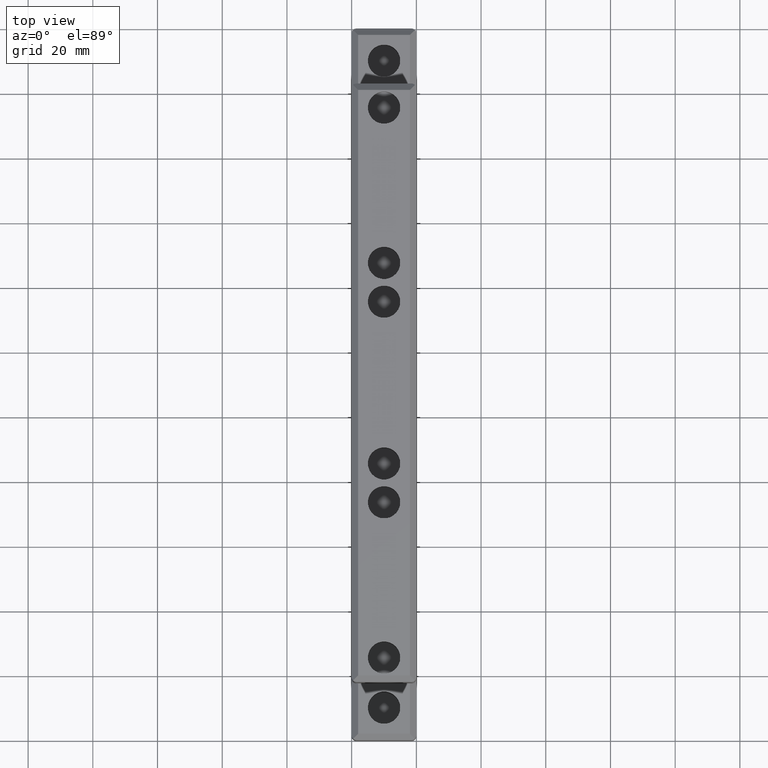
[diagram: clean part render]
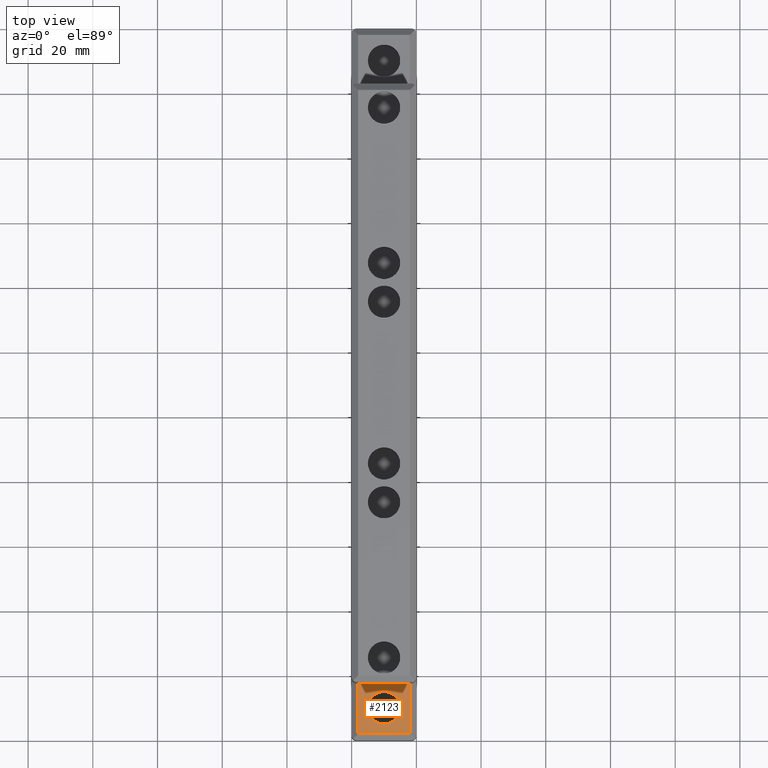
[diagram: same view with one face highlighted and labeled with its STEP entity id]
A machine part, top view. The second image highlights one B-rep face of the part: STEP entity #2123.
In plain terms, the highlighted planar face has unit normal (0, 0, 1).
Its self-contained STEP definition (entity closure, byte-faithful):
#43 = DIRECTION ( 'NONE',  ( 0.0000000000000000000, 1.000000000000000000, 0.0000000000000000000 ) ) ;
#85 = DIRECTION ( 'NONE',  ( 0.0000000000000000000, 0.0000000000000000000, 1.000000000000000000 ) ) ;
#90 = LINE ( 'NONE', #562, #2725 ) ;
#94 = EDGE_LOOP ( 'NONE', ( #836, #155 ) ) ;
#155 = ORIENTED_EDGE ( 'NONE', *, *, #1377, .F. ) ;
#166 = VECTOR ( 'NONE', #2056, 1000.000000000000000 ) ;
#290 = VERTEX_POINT ( 'NONE', #2295 ) ;
#320 = CARTESIAN_POINT ( 'NONE',  ( 17.50000000000000000, 19.50000000000000000, -20.00000000000000000 ) ) ;
#325 = VECTOR ( 'NONE', #603, 1000.000000000000000 ) ;
#335 = AXIS2_PLACEMENT_3D ( 'NONE', #1535, #43, #1279 ) ;
#562 = CARTESIAN_POINT ( 'NONE',  ( 17.50000000000000000, 19.50000000000000000, -2.000000000000000000 ) ) ;
#603 = DIRECTION ( 'NONE',  ( -1.000000000000000000, 0.0000000000000000000, 0.0000000000000000000 ) ) ;
#778 = ORIENTED_EDGE ( 'NONE', *, *, #2919, .T. ) ;
#785 = DIRECTION ( 'NONE',  ( 0.0000000000000000000, 1.000000000000000000, 0.0000000000000000000 ) ) ;
#801 = EDGE_CURVE ( 'NONE', #3041, #2331, #2613, .T. ) ;
#836 = ORIENTED_EDGE ( 'NONE', *, *, #1202, .F. ) ;
#879 = CARTESIAN_POINT ( 'NONE',  ( 2.000000000000000000, 19.50000000000000000, -20.00000000000000000 ) ) ;
#907 = CARTESIAN_POINT ( 'NONE',  ( 2.000000000000000000, 19.50000000000000000, -18.00000000000000000 ) ) ;
#931 = CARTESIAN_POINT ( 'NONE',  ( 17.50000000000000000, 19.50000000000000000, -2.000000000000000000 ) ) ;
#943 = EDGE_LOOP ( 'NONE', ( #1531, #3162, #997, #778 ) ) ;
#986 = LINE ( 'NONE', #320, #166 ) ;
#997 = ORIENTED_EDGE ( 'NONE', *, *, #1544, .F. ) ;
#1082 = AXIS2_PLACEMENT_3D ( 'NONE', #2132, #2102, #1408 ) ;
#1202 = EDGE_CURVE ( 'NONE', #1816, #2898, #1373, .T. ) ;
#1251 = CARTESIAN_POINT ( 'NONE',  ( 10.00000000000000000, 19.50000000000000000, -10.00000000000000000 ) ) ;
#1269 = PLANE ( 'NONE',  #335 ) ;
#1279 = DIRECTION ( 'NONE',  ( 0.0000000000000000000, 0.0000000000000000000, 1.000000000000000000 ) ) ;
#1321 = CARTESIAN_POINT ( 'NONE',  ( 2.000000000000000000, 19.50000000000000000, -18.00000000000000000 ) ) ;
#1373 = CIRCLE ( 'NONE', #1082, 5.000000000000000000 ) ;
#1377 = EDGE_CURVE ( 'NONE', #2898, #1816, #2496, .T. ) ;
#1408 = DIRECTION ( 'NONE',  ( 0.0000000000000000000, 0.0000000000000000000, 1.000000000000000000 ) ) ;
#1500 = EDGE_CURVE ( 'NONE', #2331, #2458, #90, .T. ) ;
#1519 = DIRECTION ( 'NONE',  ( 0.0000000000000000000, 0.0000000000000000000, 1.000000000000000000 ) ) ;
#1522 = FACE_OUTER_BOUND ( 'NONE', #943, .T. ) ;
#1531 = ORIENTED_EDGE ( 'NONE', *, *, #801, .T. ) ;
#1535 = CARTESIAN_POINT ( 'NONE',  ( 17.50000000000000000, 19.50000000000000000, -20.00000000000000000 ) ) ;
#1544 = EDGE_CURVE ( 'NONE', #290, #2458, #986, .T. ) ;
#1816 = VERTEX_POINT ( 'NONE', #2145 ) ;
#1865 = CARTESIAN_POINT ( 'NONE',  ( 2.000000000000000000, 19.50000000000000000, -2.000000000000000000 ) ) ;
#2056 = DIRECTION ( 'NONE',  ( 0.0000000000000000000, 0.0000000000000000000, 1.000000000000000000 ) ) ;
#2057 = CARTESIAN_POINT ( 'NONE',  ( 10.00000000000000000, 19.50000000000000000, -15.00000000000000000 ) ) ;
#2094 = VECTOR ( 'NONE', #85, 1000.000000000000000 ) ;
#2102 = DIRECTION ( 'NONE',  ( 0.0000000000000000000, 1.000000000000000000, 0.0000000000000000000 ) ) ;
#2123 = ADVANCED_FACE ( 'NONE', ( #2804, #1522 ), #1269, .T. ) ;
#2132 = CARTESIAN_POINT ( 'NONE',  ( 10.00000000000000000, 19.50000000000000000, -10.00000000000000000 ) ) ;
#2145 = CARTESIAN_POINT ( 'NONE',  ( 10.00000000000000000, 19.50000000000000000, -5.000000000000000000 ) ) ;
#2295 = CARTESIAN_POINT ( 'NONE',  ( 17.50000000000000000, 19.50000000000000000, -18.00000000000000000 ) ) ;
#2331 = VERTEX_POINT ( 'NONE', #1865 ) ;
#2458 = VERTEX_POINT ( 'NONE', #931 ) ;
#2470 = AXIS2_PLACEMENT_3D ( 'NONE', #1251, #785, #1519 ) ;
#2496 = CIRCLE ( 'NONE', #2470, 5.000000000000000000 ) ;
#2613 = LINE ( 'NONE', #879, #2094 ) ;
#2725 = VECTOR ( 'NONE', #2743, 1000.000000000000000 ) ;
#2743 = DIRECTION ( 'NONE',  ( 1.000000000000000000, 0.0000000000000000000, 0.0000000000000000000 ) ) ;
#2804 = FACE_BOUND ( 'NONE', #94, .T. ) ;
#2898 = VERTEX_POINT ( 'NONE', #2057 ) ;
#2919 = EDGE_CURVE ( 'NONE', #290, #3041, #2997, .T. ) ;
#2997 = LINE ( 'NONE', #1321, #325 ) ;
#3041 = VERTEX_POINT ( 'NONE', #907 ) ;
#3162 = ORIENTED_EDGE ( 'NONE', *, *, #1500, .T. ) ;